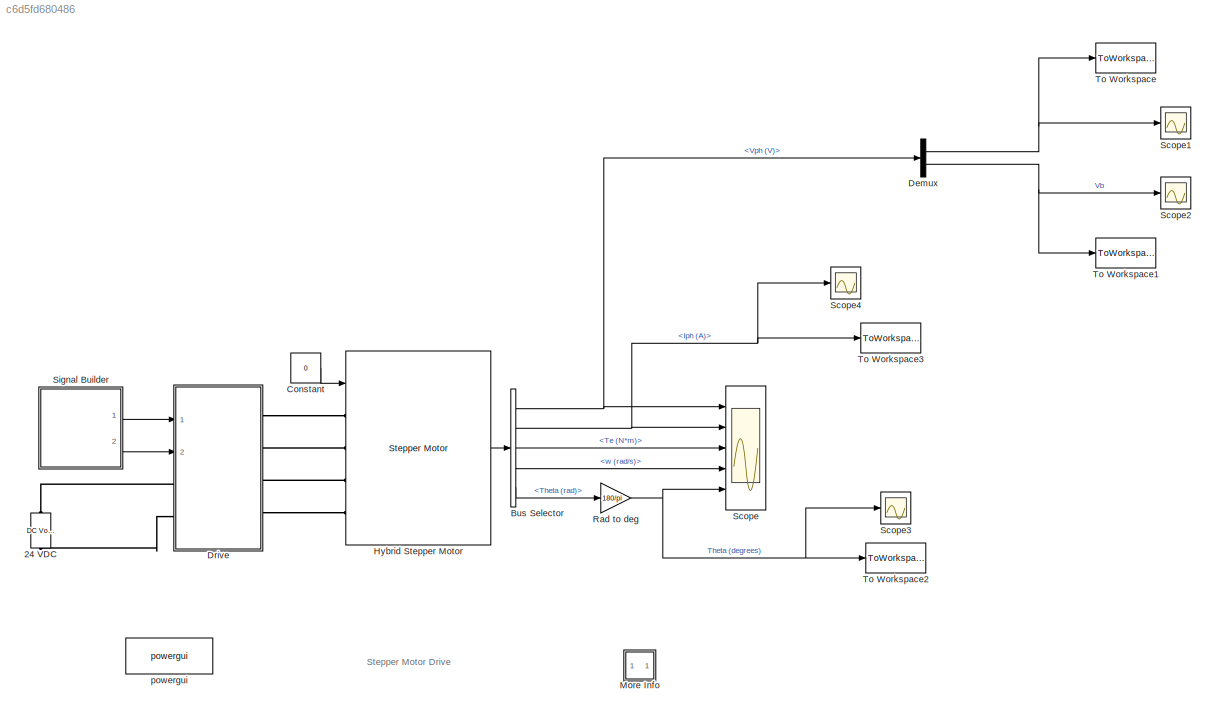
MODEL slx_c6d5fd680486
KIND model
CONFIG AbsTol = auto
CONFIG FixedStep = Ts
CONFIG InitFcn = Ts=1e-6;
CONFIG MaxStep = 2e-6
CONFIG MinStep = auto
CONFIG PreLoadFcn = assignin('base','Ts',1e-6);
CONFIG RelTol = auto
CONFIG SampleTimeConstraint = Unconstrained
CONFIG Solver = FixedStepDiscrete
CONFIG SolverMode = Auto
CONFIG SolverName = FixedStepDiscrete
CONFIG StartTime = 0.0
CONFIG StopTime = 0.55
BLOCK [Reference] 24 VDC  REF=powerlib/Electrical
Sources/DC Voltage Source
  Ports = [0, 0, 0, 0, 0, 1, 1]
  SourceBlock = powerlib/Electrical\nSources/DC Voltage Source
  SourceType = DC Voltage Source
BLOCK [BusSelector] Bus Selector
  OutputSignals = Vph (V),Iph (A),Te (N*m),w (rad/s),Theta (rad)
  Ports = [1, 5]
BLOCK [Constant] Constant
  Value = 0
BLOCK [Demux] Demux
  DisplayOption = bar
  Outputs = 2
  Ports = [1, 2]
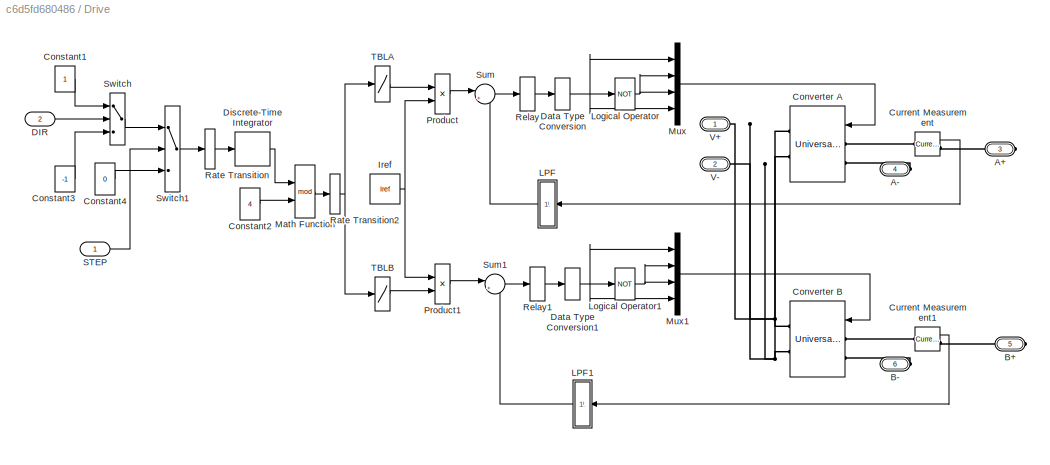
BLOCK [SubSystem] Drive
  Ports = [2, 0, 0, 0, 0, 2, 4]
  RequestExecContextInheritance = off
  Variant = off
BLOCK [PMIOPort] Drive/A+
  Port = 3
  Side = Right
BLOCK [PMIOPort] Drive/A-
  Port = 4
  Side = Right
BLOCK [PMIOPort] Drive/B+
  Port = 5
  Side = Right
BLOCK [PMIOPort] Drive/B-
  Port = 6
  Side = Right
BLOCK [Constant] Drive/Constant1
  SampleTime = Ts
BLOCK [Constant] Drive/Constant2
  SampleTime = Nstep*Ts
  Value = 4
BLOCK [Constant] Drive/Constant3
  SampleTime = Ts
  Value = -1
BLOCK [Constant] Drive/Constant4
  SampleTime = Ts
  Value = 0
BLOCK [Reference] Drive/Converter A  REF=powerlib/Power
Electronics/Universal Bridge
  Ports = [1, 0, 0, 0, 0, 2, 2]
  SourceBlock = powerlib/Power\nElectronics/Universal Bridge
  SourceType = Universal Bridge
BLOCK [Reference] Drive/Converter B  REF=powerlib/Power
Electronics/Universal Bridge
  Ports = [1, 0, 0, 0, 0, 2, 2]
  SourceBlock = powerlib/Power\nElectronics/Universal Bridge
  SourceType = Universal Bridge
BLOCK [Reference] Drive/Current Measurement  REF=powerlib/Measurements/Current Measurement
  Ports = [0, 1, 0, 0, 0, 1, 1]
  SourceBlock = powerlib/Measurements/Current Measurement
  SourceType = Current Measurement
BLOCK [Reference] Drive/Current Measurement1  REF=powerlib/Measurements/Current Measurement
  Ports = [0, 1, 0, 0, 0, 1, 1]
  SourceBlock = powerlib/Measurements/Current Measurement
  SourceType = Current Measurement
BLOCK [Inport] Drive/DIR
  IconDisplay = Port number
  Port = 2
BLOCK [DataTypeConversion] Drive/Data Type Conversion
  RndMeth = Floor
  SaturateOnIntegerOverflow = off
BLOCK [DataTypeConversion] Drive/Data Type Conversion1
  RndMeth = Floor
  SaturateOnIntegerOverflow = off
BLOCK [DiscreteIntegrator] Drive/Discrete-Time Integrator
  ICPrevOutput = DiscIntNeverNeededParam
  ICPrevScaledInput = DiscIntNeverNeededParam
  IntegratorMethod = Accumulation: Forward Euler
  Ports = [1, 1]
  SampleTime = Nstep*Ts
BLOCK [Constant] Drive/Iref
  SampleTime = Ts
  Value = Iref
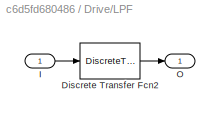
BLOCK [SubSystem] Drive/LPF
  Ports = [1, 1]
  RequestExecContextInheritance = off
  Variant = off
BLOCK [DiscreteTransferFcn] Drive/LPF/Discrete Transfer Fcn2
  Denominator = DD
  InputPortMap = u0
  Numerator = NN
  Ports = [1, 1]
  SampleTime = Ts
BLOCK [Inport] Drive/LPF/I
  IconDisplay = Port number
BLOCK [Outport] Drive/LPF/O
  IconDisplay = Port number
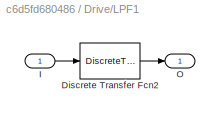
BLOCK [SubSystem] Drive/LPF1
  Ports = [1, 1]
  RequestExecContextInheritance = off
  Variant = off
BLOCK [DiscreteTransferFcn] Drive/LPF1/Discrete Transfer Fcn2
  Denominator = DD
  InputPortMap = u0
  Numerator = NN
  Ports = [1, 1]
  SampleTime = Ts
BLOCK [Inport] Drive/LPF1/I
  IconDisplay = Port number
BLOCK [Outport] Drive/LPF1/O
  IconDisplay = Port number
BLOCK [Logic] Drive/Logical Operator
  AllPortsSameDT = off
  Operator = NOT
  OutDataTypeStr = boolean
  Ports = [1, 1]
BLOCK [Logic] Drive/Logical Operator1
  AllPortsSameDT = off
  Operator = NOT
  OutDataTypeStr = boolean
  Ports = [1, 1]
BLOCK [Math] Drive/Math Function
  Operator = mod
  Ports = [2, 1]
  SampleTime = Nstep*Ts
BLOCK [Mux] Drive/Mux
  DisplayOption = bar
  Ports = [4, 1]
BLOCK [Mux] Drive/Mux1
  DisplayOption = bar
  Ports = [4, 1]
BLOCK [Product] Drive/Product
  InputSameDT = off
  OutDataTypeStr = Inherit: Inherit via internal rule
  Ports = [2, 1]
  SaturateOnIntegerOverflow = off
BLOCK [Product] Drive/Product1
  InputSameDT = off
  OutDataTypeStr = Inherit: Inherit via internal rule
  Ports = [2, 1]
  SaturateOnIntegerOverflow = off
BLOCK [RateTransition] Drive/Rate Transition
BLOCK [RateTransition] Drive/Rate Transition2
BLOCK [Relay] Drive/Relay
  OffSwitchValue = -0.01
  OnSwitchValue = 0.01
BLOCK [Relay] Drive/Relay1
  OffSwitchValue = -0.01
  OnSwitchValue = 0.01
  OutDataTypeStr = Inherit: Inherit via back propagation
BLOCK [Inport] Drive/STEP
  IconDisplay = Port number
BLOCK [Sum] Drive/Sum
  IconShape = round
  InputSameDT = off
  Inputs = |+-
  Ports = [2, 1]
  SaturateOnIntegerOverflow = off
BLOCK [Sum] Drive/Sum1
  IconShape = round
  InputSameDT = off
  Inputs = |+-
  Ports = [2, 1]
  SaturateOnIntegerOverflow = off
BLOCK [Switch] Drive/Switch
  InputSameDT = off
  SampleTime = Ts
  SaturateOnIntegerOverflow = off
  Threshold = 0.5
  ZeroCross = off
BLOCK [Switch] Drive/Switch1
  InputSameDT = off
  SampleTime = Ts
  SaturateOnIntegerOverflow = off
  Threshold = 0.5
  ZeroCross = off
BLOCK [Lookup] Drive/TBLA
  InputValues = [0:3]
  SampleTime = Ts
  SaturateOnIntegerOverflow = off
  Table = [1 0 -1 0]
BLOCK [Lookup] Drive/TBLB
  InputValues = [0:3]
  SampleTime = Ts
  SaturateOnIntegerOverflow = off
  Table = [0 1 0 -1]
BLOCK [PMIOPort] Drive/V+
  Port = 1
  Side = Left
BLOCK [PMIOPort] Drive/V-
  Port = 2
  Side = Left
BLOCK [Reference] Hybrid Stepper Motor  REF=powerlib/Machines/Stepper Motor
  Ports = [1, 1, 0, 0, 0, 4]
  SourceBlock = powerlib/Machines/Stepper Motor
  SourceType = Stepper Motor
BLOCK [SubSystem] More Info
  OpenFcn = showdemo(bdroot(gcb))
  Ports = []
  RequestExecContextInheritance = off
  Variant = off
BLOCK [Gain] Rad to deg
  Gain = 180/pi
  OutDataTypeStr = Inherit: Inherit via internal rule
  ParamDataTypeStr = Inherit: Inherit via internal rule
  SaturateOnIntegerOverflow = off
BLOCK [Scope] Scope
  NumInputPorts = 5
  Ports = [5]
  ScopeSpecificationString = Simulink.scopes.TimeScopeBlockCfg('CurrentConfiguration', extmgr.ConfigurationSet(extmgr.Configuration('Core','General UI',true),extmgr.Configuration('Core','Source UI',true),extmgr.Configuration('Sources','WiredSimulink',true,'DataLoggingSaveFormat','Array','DataLoggingDecimation','1','DataLoggingDecimateData',true),extmgr.Configuration('Visuals','Time Domain',true,'SerializedDisplays',{struct('M...<+6436ch>
BLOCK [Scope] Scope1
  Ports = [1]
  ScopeSpecificationString = Simulink.scopes.TimeScopeBlockCfg('CurrentConfiguration', extmgr.ConfigurationSet(extmgr.Configuration('Core','General UI',true),extmgr.Configuration('Core','Source UI',true),extmgr.Configuration('Sources','WiredSimulink',true,'DataLoggingVariableName','ScopeData1'),extmgr.Configuration('Visuals','Time Domain',true,'SerializedDisplays',{struct('MinYLimReal','-30.04648','MaxYLimReal','30.04637','YL...<+1399ch>
BLOCK [Scope] Scope2
  Ports = [1]
  ScopeSpecificationString = Simulink.scopes.TimeScopeBlockCfg('CurrentConfiguration', extmgr.ConfigurationSet(extmgr.Configuration('Core','General UI',true),extmgr.Configuration('Core','Source UI',true),extmgr.Configuration('Sources','WiredSimulink',true,'DataLoggingVariableName','ScopeData1'),extmgr.Configuration('Visuals','Time Domain',true,'SerializedDisplays',{struct('MinYLimReal','-30.04636','MaxYLimReal','30.04636','YL...<+1367ch>
BLOCK [Scope] Scope3
  Ports = [1]
  ScopeSpecificationString = Simulink.scopes.TimeScopeBlockCfg('CurrentConfiguration', extmgr.ConfigurationSet(extmgr.Configuration('Core','General UI',true,'FigureColor',[1 1 1]),extmgr.Configuration('Core','Source UI',true),extmgr.Configuration('Sources','WiredSimulink',true,'DataLoggingVariableName','ScopeData2'),extmgr.Configuration('Visuals','Time Domain',true,'SerializedDisplays',{struct('MinYLimReal','-2.99353','MaxYLi...<+1550ch>
BLOCK [Scope] Scope4
  Ports = [1]
  ScopeSpecificationString = Simulink.scopes.TimeScopeBlockCfg('CurrentConfiguration', extmgr.ConfigurationSet(extmgr.Configuration('Core','General UI',true),extmgr.Configuration('Core','Source UI',true),extmgr.Configuration('Sources','WiredSimulink',true,'DataLoggingVariableName','ScopeData1'),extmgr.Configuration('Visuals','Time Domain',true,'SerializedDisplays',{struct('MinYLimReal','-2.32171','MaxYLimReal','2.32691','YLab...<+1411ch>
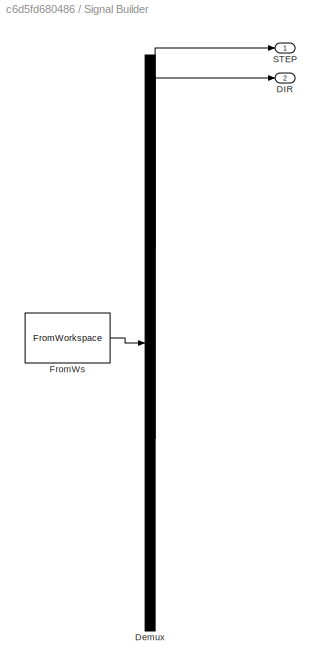
BLOCK [SubSystem] Signal Builder
  ClipboardFcn = sigbuilder_block('clipboard');
  CloseFcn = sigbuilder_block('close');
  ContinueFcn = sigbuilder_block('continue')
  CopyFcn = sigbuilder_block('copy');
  DeleteFcn = sigbuilder_block('delete');
  LoadFcn = sigbuilder_block('load');
  MaskHideContents = on
  ModelCloseFcn = sigbuilder_block('modelClose');
  NameChangeFcn = sigbuilder_block('namechange');
  OpenFcn = sigbuilder_block('open',[379.5 147.75 550.5 363.75 ]);
  PauseFcn = sigbuilder_block('pause')
  Ports = [0, 2]
  PreSaveFcn = sigbuilder_block('preSave');
  RequestExecContextInheritance = off
  StartFcn = sigbuilder_block('start');
  StopFcn = sigbuilder_block('stop');
  Tag = STV Subsys
  Variant = off
BLOCK [Outport] Signal Builder/DIR
  IconDisplay = Port number
  Port = 2
  Tag = STV Outport
BLOCK [Demux] Signal Builder/Demux
  Outputs = 2
  Ports = [1, 2]
  Tag = STV Demux
BLOCK [FromWorkspace] Signal Builder/FromWs
  SampleTime = 0
  Tag = STV FromWs
  VariableName = tuvar
  ZeroCross = on
BLOCK [Outport] Signal Builder/STEP
  IconDisplay = Port number
  Tag = STV Outport
BLOCK [ToWorkspace] To Workspace
  FixptAsFi = on
  MaxDataPoints = inf
  Ports = [1]
  SampleTime = -1
  Save2DSignal = 3-D array (concatenate along third dimension)
  SaveFormat = Timeseries
  VariableName = ua
BLOCK [ToWorkspace] To Workspace1
  FixptAsFi = on
  MaxDataPoints = inf
  Ports = [1]
  SampleTime = -1
  Save2DSignal = 3-D array (concatenate along third dimension)
  SaveFormat = Timeseries
  VariableName = ub
BLOCK [ToWorkspace] To Workspace2
  FixptAsFi = on
  MaxDataPoints = inf
  Ports = [1]
  SampleTime = -1
  Save2DSignal = 3-D array (concatenate along third dimension)
  SaveFormat = Timeseries
  VariableName = standard_output
BLOCK [ToWorkspace] To Workspace3
  FixptAsFi = on
  MaxDataPoints = inf
  Ports = [1]
  SampleTime = -1
  Save2DSignal = 3-D array (concatenate along third dimension)
  SaveFormat = Timeseries
  VariableName = p_current
BLOCK [Reference] powergui  REF=powerlib/powergui
  Ports = []
  SourceBlock = powerlib/powergui
  SourceType = PSB option menu block
  UserDataPersistent = on
ANNOTATION (root): Stepper Motor Drive
NET Bus Selector:1 -> Demux:1, Scope:1
NET Bus Selector:2 -> Scope4:1, Scope:2, To Workspace3:1
LINE Bus Selector:3 -> Scope:3
LINE Bus Selector:4 -> Scope:4
LINE Bus Selector:5 -> Rad to deg:1
LINE Constant:1 -> Hybrid Stepper Motor:1
NET Demux:1 -> Scope1:1, To Workspace:1
NET Demux:2 -> Scope2:1, To Workspace1:1
LINE Drive/Constant1:1 -> Drive/Switch:1
LINE Drive/Constant2:1 -> Drive/Math Function:2
LINE Drive/Constant3:1 -> Drive/Switch:3
LINE Drive/Constant4:1 -> Drive/Switch1:3
LINE Drive/Current Measurement1:1 -> Drive/LPF1:1
LINE Drive/Current Measurement:1 -> Drive/LPF:1
LINE Drive/DIR:1 -> Drive/Switch:2
NET Drive/Data Type Conversion1:1 -> Drive/Logical Operator1:1, Drive/Mux1:1, Drive/Mux1:4
NET Drive/Data Type Conversion:1 -> Drive/Logical Operator:1, Drive/Mux:1, Drive/Mux:4
LINE Drive/Discrete-Time Integrator:1 -> Drive/Math Function:1
NET Drive/Iref:1 -> Drive/Product1:1, Drive/Product:2
LINE Drive/LPF/Discrete Transfer Fcn2:1 -> Drive/LPF/O:1
LINE Drive/LPF/I:1 -> Drive/LPF/Discrete Transfer Fcn2:1
LINE Drive/LPF1/Discrete Transfer Fcn2:1 -> Drive/LPF1/O:1
LINE Drive/LPF1/I:1 -> Drive/LPF1/Discrete Transfer Fcn2:1
LINE Drive/LPF1:1 -> Drive/Sum1:2
LINE Drive/LPF:1 -> Drive/Sum:2
NET Drive/Logical Operator1:1 -> Drive/Mux1:2, Drive/Mux1:3
NET Drive/Logical Operator:1 -> Drive/Mux:2, Drive/Mux:3
LINE Drive/Math Function:1 -> Drive/Rate Transition2:1
LINE Drive/Mux1:1 -> Drive/Converter B:1
LINE Drive/Mux:1 -> Drive/Converter A:1
LINE Drive/Product1:1 -> Drive/Sum1:1
LINE Drive/Product:1 -> Drive/Sum:1
NET Drive/Rate Transition2:1 -> Drive/TBLA:1, Drive/TBLB:1
LINE Drive/Rate Transition:1 -> Drive/Discrete-Time Integrator:1
LINE Drive/Relay1:1 -> Drive/Data Type Conversion1:1
LINE Drive/Relay:1 -> Drive/Data Type Conversion:1
LINE Drive/STEP:1 -> Drive/Switch1:2
LINE Drive/Sum1:1 -> Drive/Relay1:1
LINE Drive/Sum:1 -> Drive/Relay:1
LINE Drive/Switch1:1 -> Drive/Rate Transition:1
LINE Drive/Switch:1 -> Drive/Switch1:1
LINE Drive/TBLA:1 -> Drive/Product:1
LINE Drive/TBLB:1 -> Drive/Product1:2
LINE Hybrid Stepper Motor:1 -> Bus Selector:1
NET Rad to deg:1 -> Scope3:1, Scope:5, To Workspace2:1
LINE Signal Builder/Demux:1 -> Signal Builder/STEP:1
LINE Signal Builder/Demux:2 -> Signal Builder/DIR:1
LINE Signal Builder/FromWs:1 -> Signal Builder/Demux:1
LINE Signal Builder:1 -> Drive:1
LINE Signal Builder:2 -> Drive:2
PLINE 24 VDC:LConn1 -- Drive:LConn2
PLINE 24 VDC:RConn1 -- Drive:LConn1
PLINE Drive/A+:RConn1 -- Drive/Current Measurement:RConn1
PLINE Drive/A-:RConn1 -- Drive/Converter A:LConn2
PLINE Drive/B+:RConn1 -- Drive/Current Measurement1:RConn1
PLINE Drive/B-:RConn1 -- Drive/Converter B:LConn2
PLINE Drive/Converter A:LConn1 -- Drive/Current Measurement:LConn1
PNET net1: Drive/Converter A:RConn1 -- Drive/Converter B:RConn1 -- Drive/V+:RConn1
PNET net2: Drive/Converter A:RConn2 -- Drive/Converter B:RConn2 -- Drive/V-:RConn1
PLINE Drive/Converter B:LConn1 -- Drive/Current Measurement1:LConn1
PLINE Drive:RConn1 -- Hybrid Stepper Motor:LConn1
PLINE Drive:RConn2 -- Hybrid Stepper Motor:LConn2
PLINE Drive:RConn3 -- Hybrid Stepper Motor:LConn3
PLINE Drive:RConn4 -- Hybrid Stepper Motor:LConn4
note: NET lines group one-source signal fan-out (src -> all destinations, sorted); 1:1 wires keep LINE; PNET lines group multi-terminal physical nets as a canonical sorted terminal list (undirected conserving connections); 2-terminal nets keep the pairwise PLINE form
